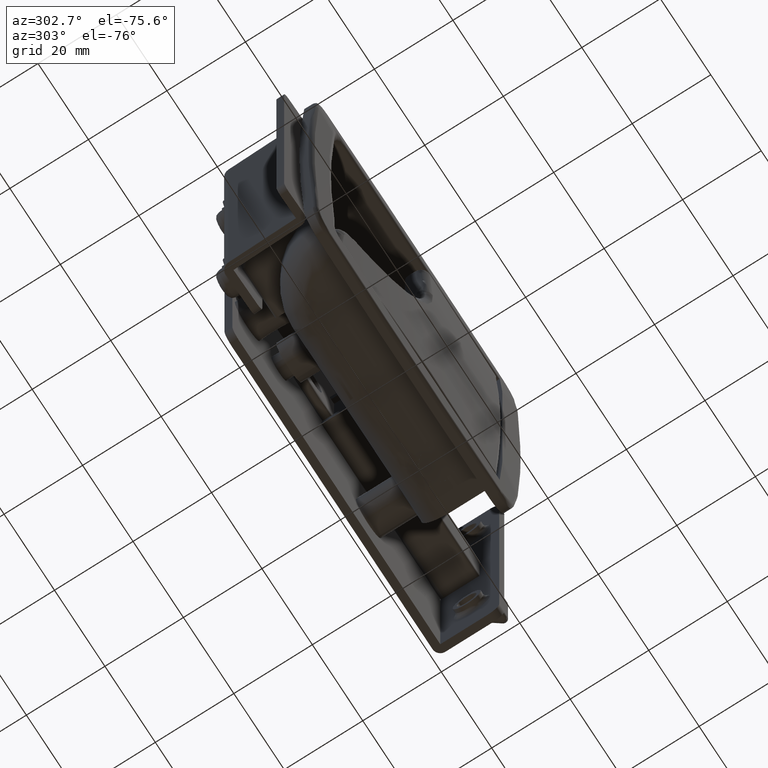
[diagram: clean part render]
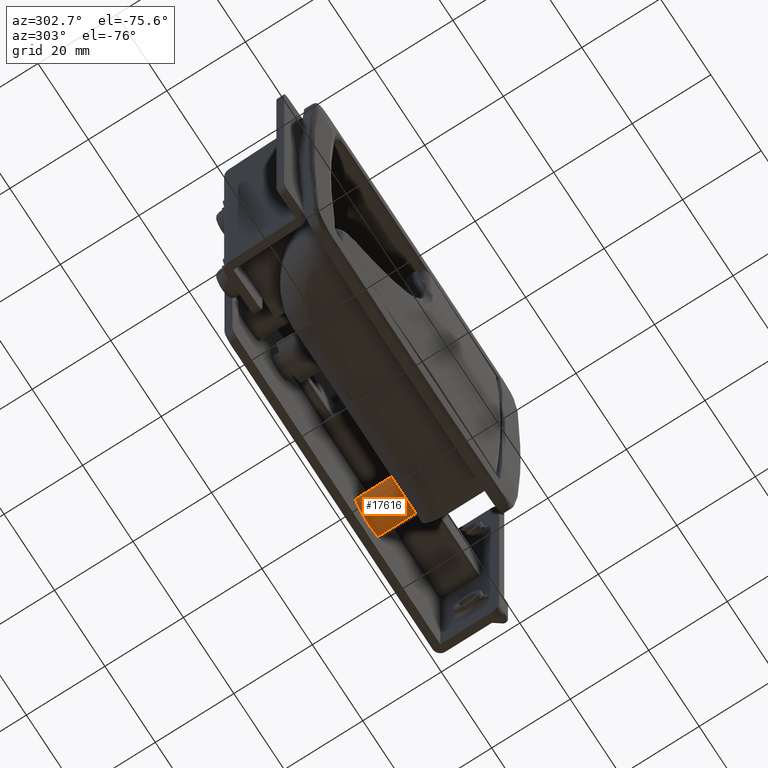
[diagram: same view with one face highlighted and labeled with its STEP entity id]
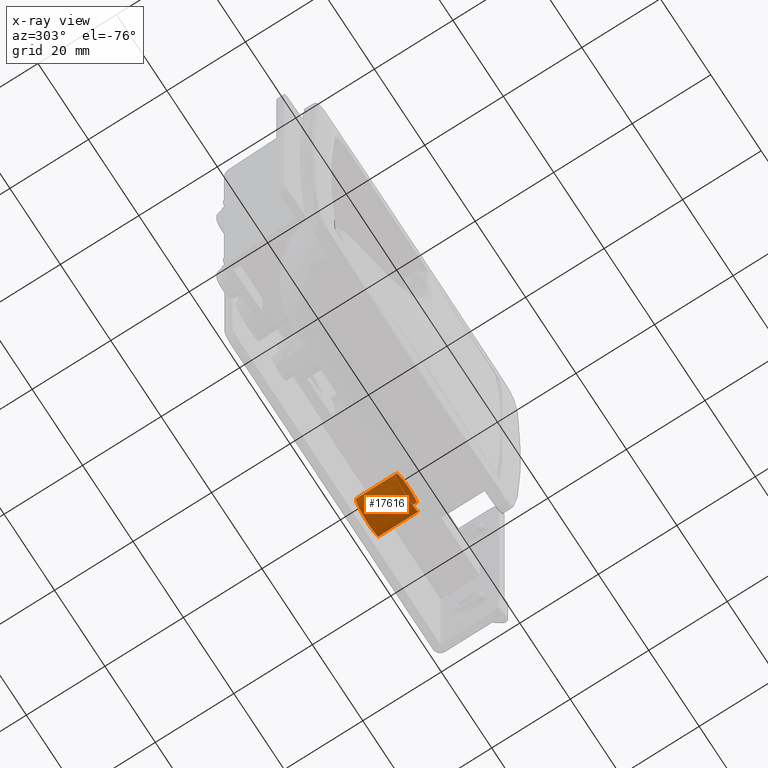
[diagram: x-ray of the same camera — body ghosted, the highlighted face saturated]
A machine part, auxiliary view. The second image highlights one B-rep face of the part: STEP entity #17616.
The next image is the same camera in x-ray: the body ghosted, the highlighted face saturated — about 3% of this face is hidden behind the body in this view.
In plain terms, the highlighted face is a freeform B-spline surface patch.
Its self-contained STEP definition (entity closure, byte-faithful):
#17468=CARTESIAN_POINT('',(-31.817778214702333,-12.455000000000007,33.228710191910132));
#17469=CARTESIAN_POINT('',(-31.725373916157579,-12.455000000000004,33.337973364186453));
#17470=CARTESIAN_POINT('',(-31.626871855061442,-12.455000000000000,33.441772878468768));
#17471=CARTESIAN_POINT('',(-28.185098976592670,-12.455000000000002,37.068644733530199));
#17472=CARTESIAN_POINT('',(-24.558227121531232,-12.455000000000000,33.626871855061438));
#17473=CARTESIAN_POINT('',(-20.931355266469801,-12.455000000000002,30.185098976592677));
#17474=CARTESIAN_POINT('',(-24.373128144938558,-12.455000000000000,26.558227121531232));
#17475=CARTESIAN_POINT('',(-27.814901023407337,-12.455000000000002,22.931355266469794));
#17476=CARTESIAN_POINT('',(-31.441772878468768,-12.455000000000000,26.373128144938558));
#17477=CARTESIAN_POINT('',(-31.817778214702333,-1.738625000000000,33.228710191910132));
#17478=CARTESIAN_POINT('',(-31.725373916157579,-1.738625000000000,33.337973364186453));
#17479=CARTESIAN_POINT('',(-31.626871855061442,-1.738624999999999,33.441772878468768));
#17480=CARTESIAN_POINT('',(-28.185098976592670,-1.738625000000000,37.068644733530199));
#17481=CARTESIAN_POINT('',(-24.558227121531232,-1.738624999999999,33.626871855061438));
#17482=CARTESIAN_POINT('',(-20.931355266469801,-1.738625000000000,30.185098976592677));
#17483=CARTESIAN_POINT('',(-24.373128144938558,-1.738624999999999,26.558227121531232));
#17484=CARTESIAN_POINT('',(-27.814901023407337,-1.738625000000000,22.931355266469794));
#17485=CARTESIAN_POINT('',(-31.441772878468768,-1.738624999999999,26.373128144938558));
#17493=(BOUNDED_SURFACE()B_SPLINE_SURFACE(2,1,((#17468,#17477),(#17469,#17478),(#17470,#17479),(#17471,#17480),(#17472,#17481),(#17473,#17482),(#17474,#17483),(#17475,#17484),(#17476,#17485)),.UNSPECIFIED.,.F.,.F.,.U.)B_SPLINE_SURFACE_WITH_KNOTS((3,2,2,2,3),(2,2),(0.0,0.331370849898476,8.615642097360375,16.899913344822270,25.184184592284169),(0.0,10.716375000000010),.UNSPECIFIED.)GEOMETRIC_REPRESENTATION_ITEM()RATIONAL_B_SPLINE_SURFACE(((0.977505800795127,0.977505800795127),(0.988284271247462,0.988284271247462),(1.0,1.0),(0.707106781186548,0.707106781186548),(1.0,1.0),(0.707106781186548,0.707106781186548),(1.0,1.0),(0.707106781186548,0.707106781186548),(1.0,1.0)))REPRESENTATION_ITEM('')SURFACE());
#17494=CARTESIAN_POINT('',(-31.817778764520710,-2.000000000005369,33.228710540129342));
#17495=VERTEX_POINT('',#17494);
#17496=CARTESIAN_POINT('',(-28.0,-2.0,34.999999999999993));
#17497=VERTEX_POINT('',#17496);
#17498=CARTESIAN_POINT('',(-31.817778764520710,-2.000000000005369,33.228710540129342));
#17499=CARTESIAN_POINT('',(-31.598661167195520,-2.000000000005060,33.487870015049353));
#17500=CARTESIAN_POINT('',(-31.058273881800321,-2.000000000004305,34.008673698982577));
#17501=CARTESIAN_POINT('',(-30.102058555872969,-2.000000000002958,34.585878333178663));
#17502=CARTESIAN_POINT('',(-29.040745482750420,-2.000000000001464,34.928327131720771));
#17503=CARTESIAN_POINT('',(-28.339376342559209,-2.000000000000465,35.000043727232928));
#17504=CARTESIAN_POINT('',(-28.0,-2.0,34.999999999999993));
#17505=B_SPLINE_CURVE_WITH_KNOTS('',3,(#17498,#17499,#17500,#17501,#17502,#17503,#17504),.UNSPECIFIED.,.F.,.U.,(4,1,1,1,4),(0.000000044645588,1.018133650594533,2.239875384363111,3.325908229894865,4.344041835800148),.UNSPECIFIED.);
#17506=EDGE_CURVE('',#17495,#17497,#17505,.T.);
#17507=ORIENTED_EDGE('',*,*,#17506,.F.);
#17508=CARTESIAN_POINT('',(-31.817777781879489,-12.199999999999999,33.228709705349580));
#17509=VERTEX_POINT('',#17508);
#17510=CARTESIAN_POINT('',(-31.817777781879489,-12.199999999999999,33.228709705349580));
#17511=CARTESIAN_POINT('',(-31.817778764520710,-2.000000000005369,33.228710540129342));
#17512=QUASI_UNIFORM_CURVE('',1,(#17510,#17511),.UNSPECIFIED.,.F.,.U.);
#17513=EDGE_CURVE('',#17509,#17495,#17512,.T.);
#17514=ORIENTED_EDGE('',*,*,#17513,.F.);
#17515=CARTESIAN_POINT('',(-27.999997384996099,-12.199999999999999,34.999999999999311));
#17516=VERTEX_POINT('',#17515);
#17517=CARTESIAN_POINT('',(-31.817777781879489,-12.199999999999999,33.228709705349580));
#17518=CARTESIAN_POINT('',(-31.569463756897470,-12.199999999999999,33.522454126451251));
#17519=CARTESIAN_POINT('',(-31.137468749914710,-12.200000000000021,33.927461361160127));
#17520=CARTESIAN_POINT('',(-30.377535010524600,-12.199999999999971,34.422017259793982));
#17521=CARTESIAN_POINT('',(-29.402582878335348,-12.200000000000040,34.858564917254817));
#17522=CARTESIAN_POINT('',(-28.543041692871199,-12.199999999999960,35.000278476948793));
#17523=CARTESIAN_POINT('',(-27.999997384996099,-12.199999999999999,34.999999999999311));
#17524=B_SPLINE_CURVE_WITH_KNOTS('',3,(#17517,#17518,#17519,#17520,#17521,#17522,#17523),.UNSPECIFIED.,.F.,.U.,(4,1,1,1,4),(0.000000044673003,1.153887880906223,1.764775670800010,2.715014115773964,4.344043893631633),.UNSPECIFIED.);
#17525=EDGE_CURVE('',#17509,#17516,#17524,.T.);
#17526=ORIENTED_EDGE('',*,*,#17525,.T.);
#17527=CARTESIAN_POINT('',(-23.0,-12.199999999999999,30.0));
#17528=VERTEX_POINT('',#17527);
#17529=CARTESIAN_POINT('',(-27.999997384996099,-12.199999999999999,34.999999999999311));
#17530=CARTESIAN_POINT('',(-27.447715050417980,-12.199999999999980,35.000315825313699));
#17531=CARTESIAN_POINT('',(-26.588946743053221,-12.200000000000040,34.856181256596621));
#17532=CARTESIAN_POINT('',(-25.427891148613110,-12.199999999999960,34.332891430841023));
#17533=CARTESIAN_POINT('',(-24.451160865513518,-12.200000000000051,33.608773619920413));
#17534=CARTESIAN_POINT('',(-23.700770344315270,-12.199999999999971,32.647057263123919));
#17535=CARTESIAN_POINT('',(-23.143863854646689,-12.200000000000029,31.411050330290550));
#17536=CARTESIAN_POINT('',(-22.999620022321821,-12.200000000000010,30.552289609647708));
#17537=CARTESIAN_POINT('',(-23.0,-12.199999999999999,30.0));
#17538=B_SPLINE_CURVE_WITH_KNOTS('',3,(#17529,#17530,#17531,#17532,#17533,#17534,#17535,#17536,#17537),.UNSPECIFIED.,.F.,.U.,(4,1,1,1,1,1,4),(0.000000145141954,1.656701756962149,2.577119644359205,3.804329205403684,5.276910045714603,6.197328215383581,7.854029440516936),.UNSPECIFIED.);
#17539=EDGE_CURVE('',#17516,#17528,#17538,.T.);
#17540=ORIENTED_EDGE('',*,*,#17539,.T.);
#17541=CARTESIAN_POINT('',(-28.000002615003901,-12.199999999999999,25.000000000000679));
#17542=VERTEX_POINT('',#17541);
#17543=CARTESIAN_POINT('',(-23.0,-12.199999999999999,30.0));
#17544=CARTESIAN_POINT('',(-22.999931949874341,-12.200000000000010,29.631838563749429));
#17545=CARTESIAN_POINT('',(-23.068091857511259,-12.199999999999960,29.018279592049382));
#17546=CARTESIAN_POINT('',(-23.341957980405329,-12.200000000000070,28.115507947050791));
#17547=CARTESIAN_POINT('',(-23.803836212528861,-12.199999999999930,27.197561345005450));
#17548=CARTESIAN_POINT('',(-24.548011713857861,-12.200000000000060,26.313183014742769));
#17549=CARTESIAN_POINT('',(-25.582055579300238,-12.199999999999960,25.565732222914061));
#17550=CARTESIAN_POINT('',(-26.731926479459030,-12.200000000000021,25.105961157180470));
#17551=CARTESIAN_POINT('',(-27.590941278200511,-12.199999999999999,24.999904643898120));
#17552=CARTESIAN_POINT('',(-28.000002615003901,-12.199999999999999,25.000000000000679));
#17553=B_SPLINE_CURVE_WITH_KNOTS('',3,(#17543,#17544,#17545,#17546,#17547,#17548,#17549,#17550,#17551,#17552),.UNSPECIFIED.,.F.,.U.,(4,1,1,1,1,1,1,4),(0.000000144227535,1.104473010449573,1.840786984830686,2.822549775483411,4.172412098249604,5.276912027204353,6.626854725685783,7.854032388254333),.UNSPECIFIED.);
#17554=EDGE_CURVE('',#17528,#17542,#17553,.T.);
#17555=ORIENTED_EDGE('',*,*,#17554,.T.);
#17556=CARTESIAN_POINT('',(-31.441773341845160,-12.199999999999999,26.373127684641531));
#17557=VERTEX_POINT('',#17556);
#17558=CARTESIAN_POINT('',(-28.000002615003901,-12.199999999999999,25.000000000000679));
#17559=CARTESIAN_POINT('',(-28.296567884367711,-12.199999999999990,24.999991705211482));
#17560=CARTESIAN_POINT('',(-29.008344893953740,-12.200000000000090,25.063436628155738));
#17561=CARTESIAN_POINT('',(-30.225671656422410,-12.199999999999831,25.443232946949589));
#17562=CARTESIAN_POINT('',(-31.040417485788780,-12.200000000000150,25.991779195349700));
#17563=CARTESIAN_POINT('',(-31.441773341845160,-12.199999999999999,26.373127684641531));
#17564=B_SPLINE_CURVE_WITH_KNOTS('',3,(#17558,#17559,#17560,#17561,#17562,#17563),.UNSPECIFIED.,.F.,.U.,(4,1,1,4),(0.000000033596628,0.889712817327408,2.135295853865319,3.796111032603144),.UNSPECIFIED.);
#17565=EDGE_CURVE('',#17542,#17557,#17564,.T.);
#17566=ORIENTED_EDGE('',*,*,#17565,.T.);
#17567=CARTESIAN_POINT('',(-31.441772443779811,-1.999999999993774,26.373128632459188));
#17568=VERTEX_POINT('',#17567);
#17569=CARTESIAN_POINT('',(-31.441773341845160,-12.199999999999999,26.373127684641531));
#17570=CARTESIAN_POINT('',(-31.441772443779811,-1.999999999993774,26.373128632459188));
#17571=QUASI_UNIFORM_CURVE('',1,(#17569,#17570),.UNSPECIFIED.,.F.,.U.);
#17572=EDGE_CURVE('',#17557,#17568,#17571,.T.);
#17573=ORIENTED_EDGE('',*,*,#17572,.T.);
#17574=CARTESIAN_POINT('',(-28.0,-2.0,25.0));
#17575=VERTEX_POINT('',#17574);
#17576=CARTESIAN_POINT('',(-28.0,-2.0,25.0));
#17577=CARTESIAN_POINT('',(-28.533873520339359,-1.999999999999039,24.999705085410241));
#17578=CARTESIAN_POINT('',(-29.344270249970371,-1.999999999997562,25.131109113731931));
#17579=CARTESIAN_POINT('',(-30.512136437473469,-1.999999999995465,25.629522463599098));
#17580=CARTESIAN_POINT('',(-31.112006338235069,-1.999999999994363,26.059981212322139));
#17581=CARTESIAN_POINT('',(-31.441772443779811,-1.999999999993774,26.373128632459188));
#17582=B_SPLINE_CURVE_WITH_KNOTS('',3,(#17576,#17577,#17578,#17579,#17580,#17581),.UNSPECIFIED.,.F.,.U.,(4,1,1,4),(0.000000033584648,1.601486685023078,2.431875687245139,3.796113152991924),.UNSPECIFIED.);
#17583=EDGE_CURVE('',#17575,#17568,#17582,.T.);
#17584=ORIENTED_EDGE('',*,*,#17583,.F.);
#17585=CARTESIAN_POINT('',(-23.000000000000689,-2.0,29.999997384996089));
#17586=VERTEX_POINT('',#17585);
#17587=CARTESIAN_POINT('',(-23.000000000000689,-2.0,29.999997384996089));
#17588=CARTESIAN_POINT('',(-22.999930808515561,-1.999999999999997,29.631836706414649));
#17589=CARTESIAN_POINT('',(-23.070359479693749,-2.000000000000007,28.997822302185330));
#17590=CARTESIAN_POINT('',(-23.349883250752050,-1.999999999999993,28.096321795083970));
#17591=CARTESIAN_POINT('',(-23.789145852776130,-2.000000000000005,27.236674717020449));
#17592=CARTESIAN_POINT('',(-24.385575302155111,-1.999999999999990,26.500794857262431));
#17593=CARTESIAN_POINT('',(-25.154529253644110,-2.000000000000005,25.853786269323152));
#17594=CARTESIAN_POINT('',(-25.870710346696320,-1.999999999999995,25.448062702784942));
#17595=CARTESIAN_POINT('',(-26.854727794084749,-2.000000000000016,25.095999699034628));
#17596=CARTESIAN_POINT('',(-27.529550043365759,-1.999999999999987,24.999807083003670));
#17597=CARTESIAN_POINT('',(-28.0,-2.0,25.0));
#17598=B_SPLINE_CURVE_WITH_KNOTS('',3,(#17587,#17588,#17589,#17590,#17591,#17592,#17593,#17594,#17595,#17596,#17597),.UNSPECIFIED.,.F.,.U.,(4,1,1,1,1,1,1,1,4),(0.000000145150118,1.104472597213405,1.902146882623746,2.822548715778315,3.988330481778074,4.724687163557175,5.829161644799145,6.442762798133713,7.854029440516936),.UNSPECIFIED.);
#17599=EDGE_CURVE('',#17586,#17575,#17598,.T.);
#17600=ORIENTED_EDGE('',*,*,#17599,.F.);
#17601=CARTESIAN_POINT('',(-28.0,-2.0,34.999999999999993));
#17602=CARTESIAN_POINT('',(-27.550016213536171,-1.999999999999999,35.000157719943680));
#17603=CARTESIAN_POINT('',(-26.854708636206379,-2.000000000000003,34.905449683285283));
#17604=CARTESIAN_POINT('',(-25.869897872992759,-1.999999999999995,34.553079905685273));
#17605=CARTESIAN_POINT('',(-25.049682229261830,-2.000000000000010,34.081809341855077));
#17606=CARTESIAN_POINT('',(-24.314261168130368,-1.999999999999988,33.423390533519772));
#17607=CARTESIAN_POINT('',(-23.705165720897980,-2.000000000000008,32.622855120009113));
#17608=CARTESIAN_POINT('',(-23.163504833202499,-1.999999999999995,31.513291742380780));
#17609=CARTESIAN_POINT('',(-22.999571911626330,-2.000000000000001,30.572744339078540));
#17610=CARTESIAN_POINT('',(-23.000000000000689,-2.0,29.999997384996089));
#17611=B_SPLINE_CURVE_WITH_KNOTS('',3,(#17601,#17602,#17603,#17604,#17605,#17606,#17607,#17608,#17609,#17610),.UNSPECIFIED.,.F.,.U.,(4,1,1,1,1,1,1,4),(0.000000144233820,1.349896616908670,2.086230228284734,3.129345552434391,4.172412098251909,5.031484598997567,6.135964856932048,7.854032388254338),.UNSPECIFIED.);
#17612=EDGE_CURVE('',#17497,#17586,#17611,.T.);
#17613=ORIENTED_EDGE('',*,*,#17612,.F.);
#17614=EDGE_LOOP('',(#17507,#17514,#17526,#17540,#17555,#17566,#17573,#17584,#17600,#17613));
#17615=FACE_OUTER_BOUND('',#17614,.T.);
#17616=ADVANCED_FACE('',(#17615),#17493,.T.);